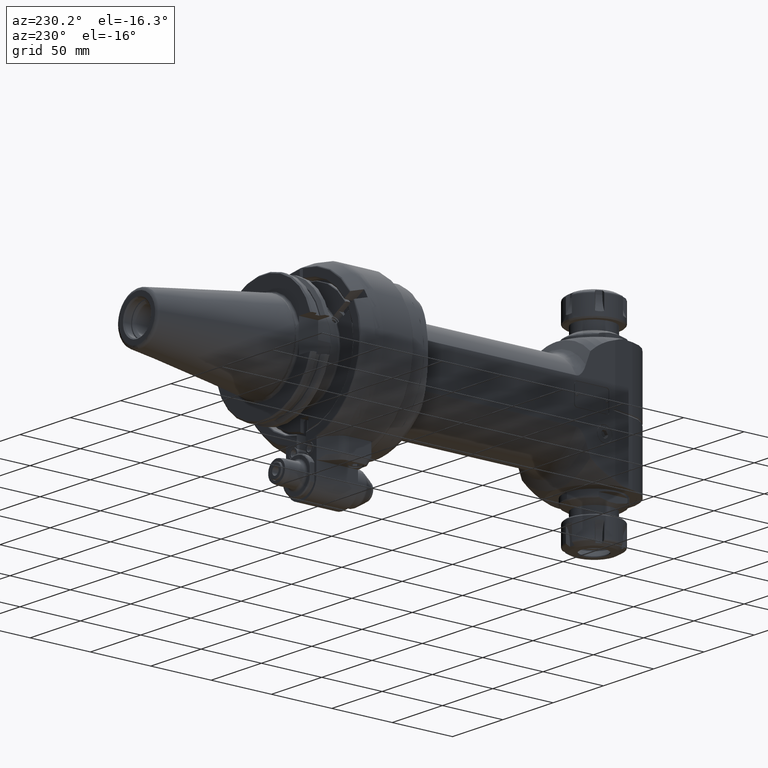
[diagram: clean part render]
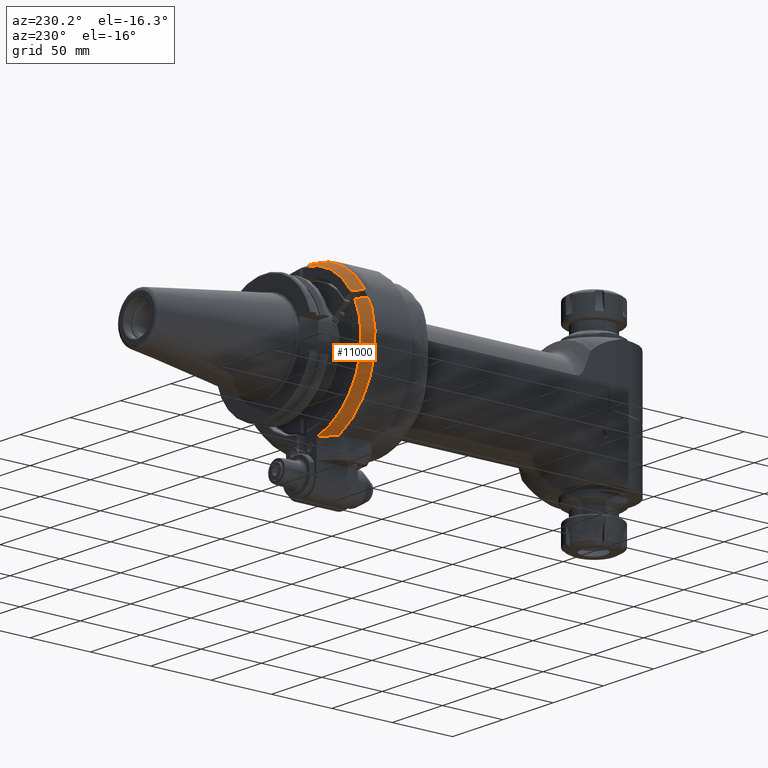
[diagram: same view with one face highlighted and labeled with its STEP entity id]
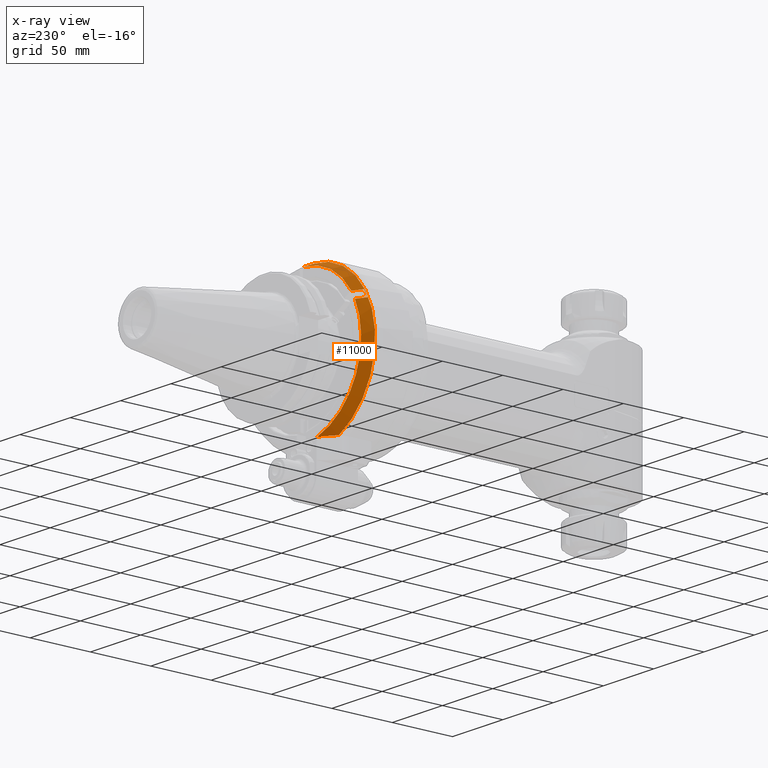
[diagram: x-ray of the same camera — body ghosted, the highlighted face saturated]
A machine part, auxiliary view. The second image highlights one B-rep face of the part: STEP entity #11000.
The next image is the same camera in x-ray: the body ghosted, the highlighted face saturated — about 0% of this face is hidden behind the body in this view.
In plain terms, the highlighted conical surface has half-angle 25 deg.
Its self-contained STEP definition (entity closure, byte-faithful):
#151=(
BOUNDED_CURVE()
B_SPLINE_CURVE(2,(#18773,#18774,#18775),.UNSPECIFIED.,.F.,.F.)
B_SPLINE_CURVE_WITH_KNOTS((3,3),(-4.74771824887542,-3.024658825595),
 .UNSPECIFIED.)
CURVE()
GEOMETRIC_REPRESENTATION_ITEM()
RATIONAL_B_SPLINE_CURVE((1.00692453140604,1.01790271037788,1.0200003519283))
REPRESENTATION_ITEM('')
);
#338=B_SPLINE_CURVE_WITH_KNOTS('',3,(#18707,#18708,#18709,#18710,#18711,
#18712,#18713,#18714,#18715,#18716),.UNSPECIFIED.,.F.,.F.,(4,3,3,4),(0.,
0.3333333333333,0.6666666666667,0.999998522495353),.UNSPECIFIED.);
#341=B_SPLINE_CURVE_WITH_KNOTS('',3,(#18748,#18749,#18750,#18751,#18752,
#18753,#18754,#18755,#18756,#18757),.UNSPECIFIED.,.F.,.F.,(4,3,3,4),(9.89086770439934E-6,
0.3333333333333,0.6666666666667,1.),.UNSPECIFIED.);
#342=B_SPLINE_CURVE_WITH_KNOTS('',3,(#18761,#18762,#18763,#18764,#18765,
#18766,#18767,#18768,#18769,#18770),.UNSPECIFIED.,.F.,.F.,(4,3,3,4),(0.,
0.3333333333333,0.6666666666667,0.999990397459805),.UNSPECIFIED.);
#980=CONICAL_SURFACE('',#12046,60.72877327237,0.436332312998582);
#1377=FACE_OUTER_BOUND('',#2107,.T.);
#2107=EDGE_LOOP('',(#8765,#8766,#8767,#8768,#8769,#8770,#8771,#8772));
#4115=CIRCLE('',#12045,62.68830901851);
#4116=CIRCLE('',#12047,58.76923752623);
#4117=CIRCLE('',#12048,62.46361509432);
#4118=CIRCLE('',#12049,58.76923752623);
#4961=VERTEX_POINT('',#18697);
#4962=VERTEX_POINT('',#18706);
#4965=VERTEX_POINT('',#18730);
#4966=VERTEX_POINT('',#18745);
#4967=VERTEX_POINT('',#18747);
#4968=VERTEX_POINT('',#18758);
#4969=VERTEX_POINT('',#18760);
#4970=VERTEX_POINT('',#18771);
#6327=EDGE_CURVE('',#4962,#4961,#338,.T.);
#6331=EDGE_CURVE('',#4962,#4965,#4115,.T.);
#6333=EDGE_CURVE('',#4966,#4961,#4116,.T.);
#6334=EDGE_CURVE('',#4966,#4967,#341,.T.);
#6335=EDGE_CURVE('',#4968,#4967,#4117,.T.);
#6336=EDGE_CURVE('',#4968,#4969,#342,.T.);
#6337=EDGE_CURVE('',#4970,#4969,#4118,.T.);
#6338=EDGE_CURVE('',#4970,#4965,#151,.T.);
#8765=ORIENTED_EDGE('',*,*,#6333,.F.);
#8766=ORIENTED_EDGE('',*,*,#6334,.T.);
#8767=ORIENTED_EDGE('',*,*,#6335,.F.);
#8768=ORIENTED_EDGE('',*,*,#6336,.T.);
#8769=ORIENTED_EDGE('',*,*,#6337,.F.);
#8770=ORIENTED_EDGE('',*,*,#6338,.T.);
#8771=ORIENTED_EDGE('',*,*,#6331,.F.);
#8772=ORIENTED_EDGE('',*,*,#6327,.T.);
#11000=ADVANCED_FACE('',(#1377),#980,.T.);
#12045=AXIS2_PLACEMENT_3D('',#18731,#14269,#14270);
#12046=AXIS2_PLACEMENT_3D('',#18744,#14271,#14272);
#12047=AXIS2_PLACEMENT_3D('',#18746,#14273,#14274);
#12048=AXIS2_PLACEMENT_3D('',#18759,#14275,#14276);
#12049=AXIS2_PLACEMENT_3D('',#18772,#14277,#14278);
#14269=DIRECTION('center_axis',(0.,-1.,0.));
#14270=DIRECTION('ref_axis',(-0.0239279040962907,0.,0.999713686715131));
#14271=DIRECTION('center_axis',(0.,-1.,0.));
#14272=DIRECTION('ref_axis',(0.,0.,1.));
#14273=DIRECTION('center_axis',(0.,1.,0.));
#14274=DIRECTION('ref_axis',(-0.834710749186479,0.,0.550688628167086));
#14275=DIRECTION('center_axis',(0.,1.,0.));
#14276=DIRECTION('ref_axis',(-0.892681134667265,0.,0.450688797075282));
#14277=DIRECTION('center_axis',(0.,1.,0.));
#14278=DIRECTION('ref_axis',(-0.259878771454195,0.,-0.965641250230881));
#18697=CARTESIAN_POINT('',(-1.49999984619298,41.9226180349165,58.7500917422423));
#18706=CARTESIAN_POINT('',(-1.49999987347283,33.5181469863228,62.6703582399581));
#18707=CARTESIAN_POINT('Ctrl Pts',(-1.499999846154,33.51815187804,62.67035595862));
#18708=CARTESIAN_POINT('Ctrl Pts',(-1.499999846154,34.45196798497,62.23478564709));
#18709=CARTESIAN_POINT('Ctrl Pts',(-1.499999846154,35.3858019654049,61.7992043948251));
#18710=CARTESIAN_POINT('Ctrl Pts',(-1.499999846154,36.3196344526956,61.3636210726876));
#18711=CARTESIAN_POINT('Ctrl Pts',(-1.499999846154,37.2534669399866,60.92803775055));
#18712=CARTESIAN_POINT('Ctrl Pts',(-1.499999846154,38.1872979341334,60.49245235854));
#18713=CARTESIAN_POINT('Ctrl Pts',(-1.499999846154,39.1211265732769,60.0568651161449));
#18714=CARTESIAN_POINT('Ctrl Pts',(-1.499999846154,40.0549510732117,59.6212798044965));
#18715=CARTESIAN_POINT('Ctrl Pts',(-1.499999846154,40.988773218164,59.1856926424795));
#18716=CARTESIAN_POINT('Ctrl Pts',(-1.499999846154,41.9226180353244,58.7500917431169));
#18730=CARTESIAN_POINT('',(-26.63196552267,33.5181420938,-56.75));
#18731=CARTESIAN_POINT('Origin',(0.,33.5181420938,0.));
#18744=CARTESIAN_POINT('Origin',(0.,37.72038006238,0.));
#18745=CARTESIAN_POINT('',(-49.0553142878344,41.9226180617848,32.3635507938407));
#18746=CARTESIAN_POINT('Origin',(0.,41.92261803097,0.));
#18747=CARTESIAN_POINT('',(-52.26009079782,33.99999976923,34.21382937432));
#18748=CARTESIAN_POINT('Ctrl Pts',(-49.0553143138643,41.9226180757675,32.3635508086192));
#18749=CARTESIAN_POINT('Ctrl Pts',(-49.4114744156339,41.0422373164513,32.5691799392505));
#18750=CARTESIAN_POINT('Ctrl Pts',(-49.7675622448854,40.1620019616028,32.774767343324));
#18751=CARTESIAN_POINT('Ctrl Pts',(-50.1236453074269,39.2817478028086,32.9803519953362));
#18752=CARTESIAN_POINT('Ctrl Pts',(-50.4797389361934,38.4014675238068,33.1859427477613));
#18753=CARTESIAN_POINT('Ctrl Pts',(-50.835827797967,37.5211684397432,33.3915307479617));
#18754=CARTESIAN_POINT('Ctrl Pts',(-51.1919029398914,36.6408743966589,33.5971108270035));
#18755=CARTESIAN_POINT('Ctrl Pts',(-51.5479780818158,35.7605803535749,33.8026909060453));
#18756=CARTESIAN_POINT('Ctrl Pts',(-51.9040395038909,34.88029135147,34.0082630639284));
#18757=CARTESIAN_POINT('Ctrl Pts',(-52.2600907978184,33.99999976923,34.2138293743228));
#18758=CARTESIAN_POINT('',(-55.76009079782,33.99999976923,28.15165154783));
#18759=CARTESIAN_POINT('Origin',(0.,33.99999976923,0.));
#18760=CARTESIAN_POINT('',(-52.555314297081,41.9226180377518,26.3013729727716));
#18761=CARTESIAN_POINT('Ctrl Pts',(-55.7600907978181,33.99999976923,28.1516515478334));
#18762=CARTESIAN_POINT('Ctrl Pts',(-55.4040395038906,34.88029135147,27.946085237439));
#18763=CARTESIAN_POINT('Ctrl Pts',(-55.0479780505803,35.7605804305549,27.7405130615223));
#18764=CARTESIAN_POINT('Ctrl Pts',(-54.6919029398903,36.6408743966623,27.5349330005137));
#18765=CARTESIAN_POINT('Ctrl Pts',(-54.3358278292002,37.5211683627699,27.329352939505));
#18766=CARTESIAN_POINT('Ctrl Pts',(-53.9797390611302,38.4014672159001,27.1237649934044));
#18767=CARTESIAN_POINT('Ctrl Pts',(-53.6236453074276,39.2817478028077,26.9181741688474));
#18768=CARTESIAN_POINT('Ctrl Pts',(-53.2675618119389,40.162003030926,26.712589266873));
#18769=CARTESIAN_POINT('Ctrl Pts',(-52.9114733311049,41.0422399938741,26.5070014866082));
#18770=CARTESIAN_POINT('Ctrl Pts',(-52.5553143223574,41.9226180513166,26.3013729870335));
#18771=CARTESIAN_POINT('',(-15.27287724767,41.92261803089,-56.74999999998));
#18772=CARTESIAN_POINT('Origin',(0.,41.92261803097,0.));
#18773=CARTESIAN_POINT('Ctrl Pts',(-15.2728772477311,41.9226180307839,-56.75));
#18774=CARTESIAN_POINT('Ctrl Pts',(-20.7691594952681,38.8594749468473,-56.75));
#18775=CARTESIAN_POINT('Ctrl Pts',(-26.6319655225192,33.518142093926,-56.75));